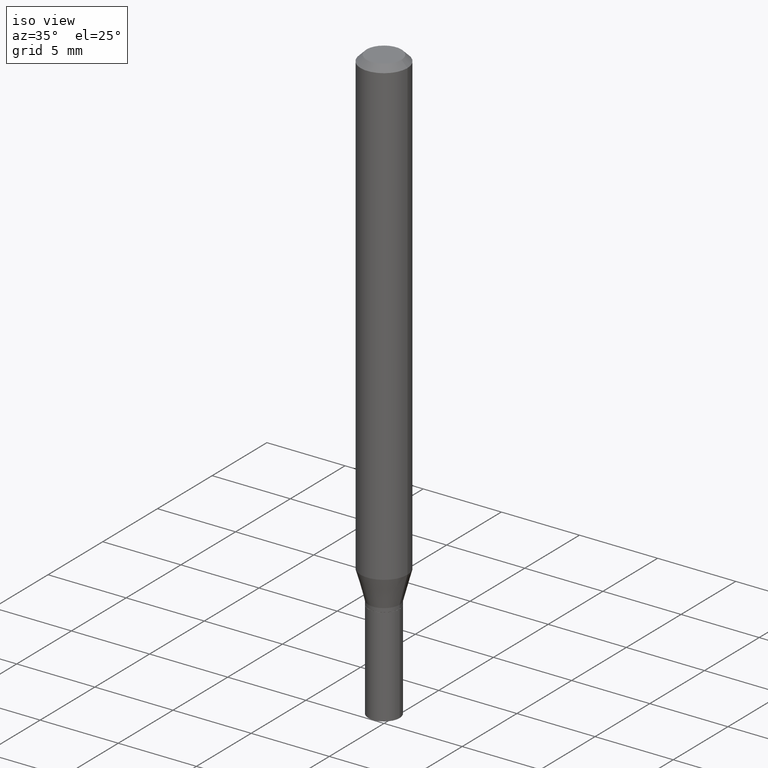
[diagram: clean part render]
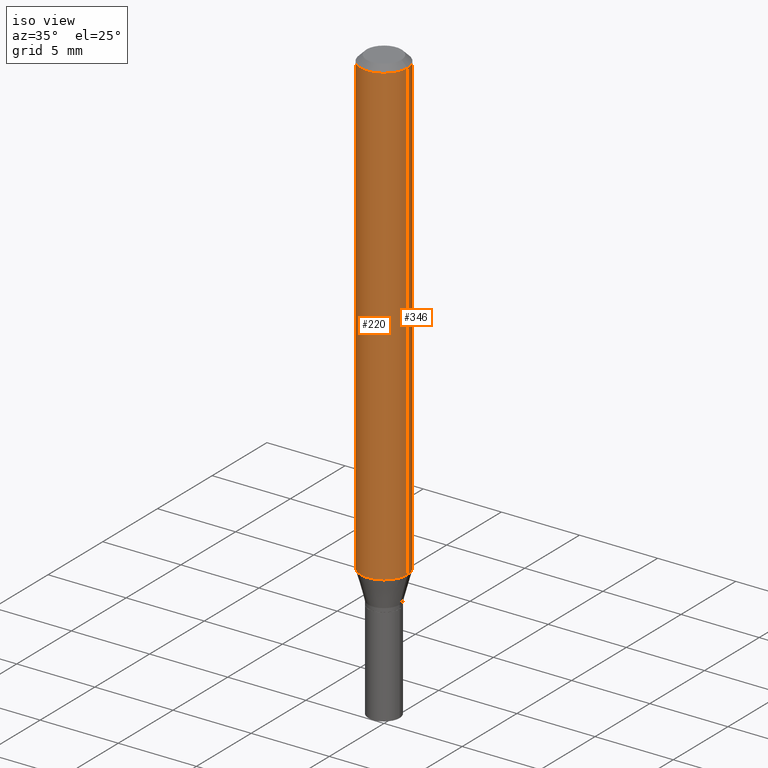
[diagram: same view with one multi-face feature highlighted, each face labeled with its STEP entity id]
A machine part, iso view. The highlighted faces form ONE feature: a constant-radius fillet chain: 2 tangent blend faces with common blend radius 1.4999 mm. The faces share edges in the B-rep.
Their STEP definitions:
[1] entity #220 (Cylinder):
#3 = VERTEX_POINT ( 'NONE', #158 ) ;
#13 = ORIENTED_EDGE ( 'NONE', *, *, #278, .T. ) ;
#24 = AXIS2_PLACEMENT_3D ( 'NONE', #151, #150, #427 ) ;
#62 = ORIENTED_EDGE ( 'NONE', *, *, #229, .T. ) ;
#72 = VERTEX_POINT ( 'NONE', #331 ) ;
#74 = DIRECTION ( 'NONE',  ( -2.445468806185136597E-29, 3.491481338843145583E-15, 1.000000000000000000 ) ) ;
#99 = CARTESIAN_POINT ( 'NONE',  ( 0.05905000000000000526, -4.123439461173741313E-16, 2.879382386107500571E-30 ) ) ;
#126 = AXIS2_PLACEMENT_3D ( 'NONE', #372, #228, #200 ) ;
#142 = EDGE_CURVE ( 'NONE', #379, #3, #409, .T. ) ;
#150 = DIRECTION ( 'NONE',  ( -2.445468806185136597E-29, 3.491481338843145583E-15, 1.000000000000000000 ) ) ;
#151 = CARTESIAN_POINT ( 'NONE',  ( 2.857477964771687293E-29, -4.079721223563434330E-15, -1.168478599090893244 ) ) ;
#158 = CARTESIAN_POINT ( 'NONE',  ( -0.05905000000000002608, -1.646471236356701803E-15, -0.01499999999999999944 ) ) ;
#173 = CARTESIAN_POINT ( 'NONE',  ( 0.000000000000000000, 0.000000000000000000, 0.000000000000000000 ) ) ;
#197 = CYLINDRICAL_SURFACE ( 'NONE', #408, 0.05905000000000000526 ) ;
#200 = DIRECTION ( 'NONE',  ( 1.000000000000000000, -6.982962677686266711E-15, 0.000000000000000000 ) ) ;
#210 = VERTEX_POINT ( 'NONE', #404 ) ;
#214 = VECTOR ( 'NONE', #376, 39.37007874015748143 ) ;
#215 = VECTOR ( 'NONE', #395, 39.37007874015748143 ) ;
#220 = ADVANCED_FACE ( 'NONE', ( #340 ), #197, .T. ) ;
#228 = DIRECTION ( 'NONE',  ( -2.445468806185136597E-29, 3.491481338843145583E-15, 1.000000000000000000 ) ) ;
#229 = EDGE_CURVE ( 'NONE', #379, #210, #400, .T. ) ;
#238 = CARTESIAN_POINT ( 'NONE',  ( -0.05905000000000000526, 4.195754854663391971E-16, -2.904631170795522242E-30 ) ) ;
#249 = ORIENTED_EDGE ( 'NONE', *, *, #429, .F. ) ;
#260 = ORIENTED_EDGE ( 'NONE', *, *, #142, .F. ) ;
#278 = EDGE_CURVE ( 'NONE', #210, #72, #384, .T. ) ;
#292 = EDGE_LOOP ( 'NONE', ( #260, #62, #13, #249 ) ) ;
#331 = CARTESIAN_POINT ( 'NONE',  ( 0.05905000000000001914, -4.647161662000214077E-16, -0.01499999999999999944 ) ) ;
#332 = DIRECTION ( 'NONE',  ( 1.000000000000000000, -6.982962677686267499E-15, 4.876176775795936353E-29 ) ) ;
#338 = CARTESIAN_POINT ( 'NONE',  ( -0.05904999999999999832, -3.660145738097095626E-15, -1.168478599090893244 ) ) ;
#340 = FACE_OUTER_BOUND ( 'NONE', #292, .T. ) ;
#372 = CARTESIAN_POINT ( 'NONE',  ( 3.668203209277705088E-31, -5.237222008264718399E-17, -0.01499999999999999944 ) ) ;
#376 = DIRECTION ( 'NONE',  ( -2.445468806185136877E-29, 3.491481338843145188E-15, 1.000000000000000000 ) ) ;
#379 = VERTEX_POINT ( 'NONE', #338 ) ;
#384 = LINE ( 'NONE', #99, #215 ) ;
#395 = DIRECTION ( 'NONE',  ( -2.445468806185136877E-29, 3.491481338843145188E-15, 1.000000000000000000 ) ) ;
#400 = CIRCLE ( 'NONE', #24, 0.05904999999999999832 ) ;
#404 = CARTESIAN_POINT ( 'NONE',  ( 0.05904999999999999832, -4.492065169680809250E-15, -1.168478599090893244 ) ) ;
#408 = AXIS2_PLACEMENT_3D ( 'NONE', #173, #74, #332 ) ;
#409 = LINE ( 'NONE', #238, #214 ) ;
#424 = CIRCLE ( 'NONE', #126, 0.05905000000000001914 ) ;
#427 = DIRECTION ( 'NONE',  ( 1.000000000000000000, -6.982962677686273021E-15, 0.000000000000000000 ) ) ;
#429 = EDGE_CURVE ( 'NONE', #3, #72, #424, .T. ) ;
[2] entity #346 (Cylinder):
#1 = CIRCLE ( 'NONE', #65, 0.05904999999999999832 ) ;
#3 = VERTEX_POINT ( 'NONE', #158 ) ;
#8 = EDGE_CURVE ( 'NONE', #72, #3, #341, .T. ) ;
#43 = DIRECTION ( 'NONE',  ( 1.000000000000000000, -6.982962677686266711E-15, 0.000000000000000000 ) ) ;
#49 = CARTESIAN_POINT ( 'NONE',  ( 2.857477964771687293E-29, -4.079721223563434330E-15, -1.168478599090893244 ) ) ;
#65 = AXIS2_PLACEMENT_3D ( 'NONE', #49, #202, #186 ) ;
#67 = EDGE_LOOP ( 'NONE', ( #360, #295, #85, #415 ) ) ;
#71 = CYLINDRICAL_SURFACE ( 'NONE', #437, 0.05905000000000000526 ) ;
#72 = VERTEX_POINT ( 'NONE', #331 ) ;
#85 = ORIENTED_EDGE ( 'NONE', *, *, #8, .F. ) ;
#99 = CARTESIAN_POINT ( 'NONE',  ( 0.05905000000000000526, -4.123439461173741313E-16, 2.879382386107500571E-30 ) ) ;
#121 = CARTESIAN_POINT ( 'NONE',  ( 3.668203209277705088E-31, -5.237222008264718399E-17, -0.01499999999999999944 ) ) ;
#142 = EDGE_CURVE ( 'NONE', #379, #3, #409, .T. ) ;
#157 = EDGE_CURVE ( 'NONE', #210, #379, #1, .T. ) ;
#158 = CARTESIAN_POINT ( 'NONE',  ( -0.05905000000000002608, -1.646471236356701803E-15, -0.01499999999999999944 ) ) ;
#186 = DIRECTION ( 'NONE',  ( 1.000000000000000000, -6.982962677686273021E-15, 0.000000000000000000 ) ) ;
#202 = DIRECTION ( 'NONE',  ( -2.445468806185136597E-29, 3.491481338843145583E-15, 1.000000000000000000 ) ) ;
#210 = VERTEX_POINT ( 'NONE', #404 ) ;
#214 = VECTOR ( 'NONE', #376, 39.37007874015748143 ) ;
#215 = VECTOR ( 'NONE', #395, 39.37007874015748143 ) ;
#234 = DIRECTION ( 'NONE',  ( -2.445468806185136597E-29, 3.491481338843145583E-15, 1.000000000000000000 ) ) ;
#238 = CARTESIAN_POINT ( 'NONE',  ( -0.05905000000000000526, 4.195754854663391971E-16, -2.904631170795522242E-30 ) ) ;
#259 = FACE_OUTER_BOUND ( 'NONE', #67, .T. ) ;
#264 = CARTESIAN_POINT ( 'NONE',  ( 0.000000000000000000, 0.000000000000000000, 0.000000000000000000 ) ) ;
#278 = EDGE_CURVE ( 'NONE', #210, #72, #384, .T. ) ;
#295 = ORIENTED_EDGE ( 'NONE', *, *, #142, .T. ) ;
#297 = DIRECTION ( 'NONE',  ( -2.445468806185136597E-29, 3.491481338843145583E-15, 1.000000000000000000 ) ) ;
#331 = CARTESIAN_POINT ( 'NONE',  ( 0.05905000000000001914, -4.647161662000214077E-16, -0.01499999999999999944 ) ) ;
#338 = CARTESIAN_POINT ( 'NONE',  ( -0.05904999999999999832, -3.660145738097095626E-15, -1.168478599090893244 ) ) ;
#341 = CIRCLE ( 'NONE', #386, 0.05905000000000001914 ) ;
#346 = ADVANCED_FACE ( 'NONE', ( #259 ), #71, .T. ) ;
#360 = ORIENTED_EDGE ( 'NONE', *, *, #157, .T. ) ;
#368 = DIRECTION ( 'NONE',  ( 1.000000000000000000, -6.982962677686267499E-15, 4.876176775795936353E-29 ) ) ;
#376 = DIRECTION ( 'NONE',  ( -2.445468806185136877E-29, 3.491481338843145188E-15, 1.000000000000000000 ) ) ;
#379 = VERTEX_POINT ( 'NONE', #338 ) ;
#384 = LINE ( 'NONE', #99, #215 ) ;
#386 = AXIS2_PLACEMENT_3D ( 'NONE', #121, #234, #43 ) ;
#395 = DIRECTION ( 'NONE',  ( -2.445468806185136877E-29, 3.491481338843145188E-15, 1.000000000000000000 ) ) ;
#404 = CARTESIAN_POINT ( 'NONE',  ( 0.05904999999999999832, -4.492065169680809250E-15, -1.168478599090893244 ) ) ;
#409 = LINE ( 'NONE', #238, #214 ) ;
#415 = ORIENTED_EDGE ( 'NONE', *, *, #278, .F. ) ;
#437 = AXIS2_PLACEMENT_3D ( 'NONE', #264, #297, #368 ) ;